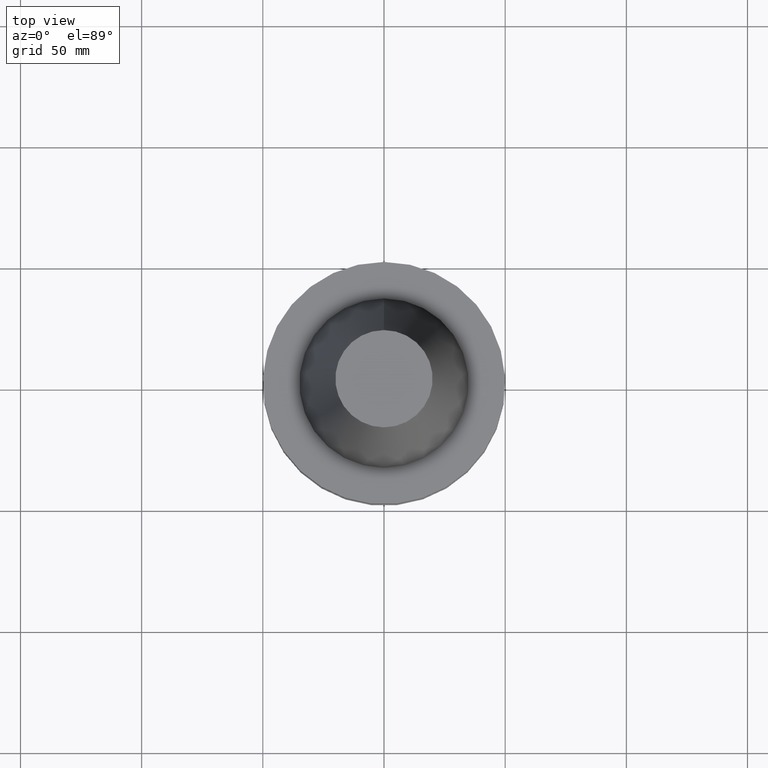
[diagram: clean part render]
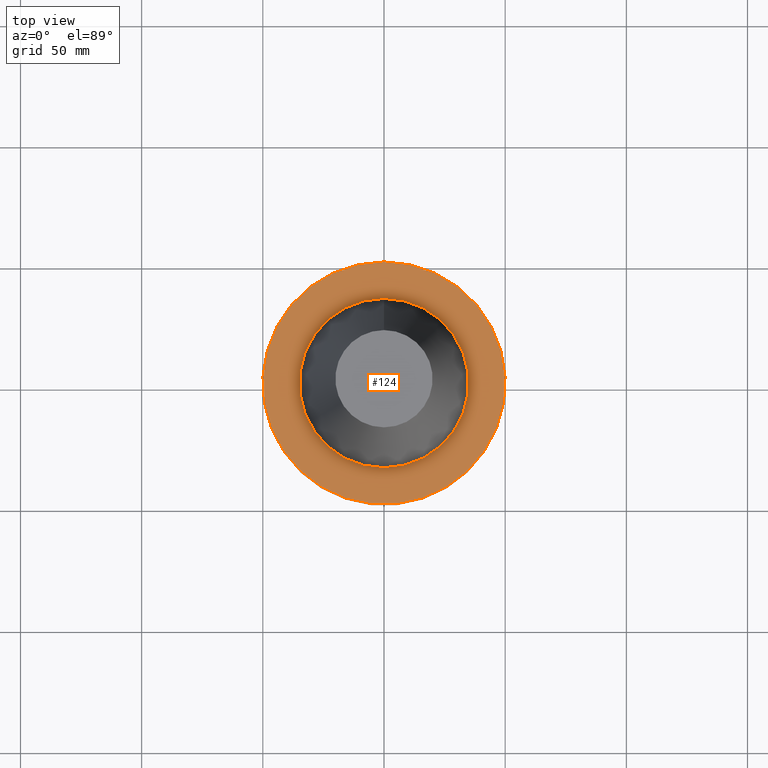
[diagram: same view with one face highlighted and labeled with its STEP entity id]
A machine part, top view. The second image highlights one B-rep face of the part: STEP entity #124.
In plain terms, the highlighted planar face has unit normal (-0, -0, 1).
Its self-contained STEP definition (entity closure, byte-faithful):
#81=EDGE_CURVE('Unnamed[1]',#211,#211,#212,.T.);
#99=EDGE_CURVE('Unnamed[1]',#240,#240,#241,.T.);
#124=ADVANCED_FACE('Unnamed[1]',(#277,#278),#279,.T.);
#211=VERTEX_POINT('',#389);
#212=CIRCLE('',#390,34.925);
#240=VERTEX_POINT('',#425);
#241=CIRCLE('',#426,50.0);
#277=FACE_BOUND('',#471,.T.);
#278=FACE_OUTER_BOUND('',#472,.T.);
#279=PLANE('',#473);
#389=CARTESIAN_POINT('',(9.18485099360511E-017,34.925,-1.5));
#390=AXIS2_PLACEMENT_3D('',#592,#593,#594);
#425=CARTESIAN_POINT('',(9.18485099360509E-017,50.0,-1.49999999999999));
#426=AXIS2_PLACEMENT_3D('',#625,#626,#627);
#471=EDGE_LOOP('',(#668));
#472=EDGE_LOOP('',(#669));
#473=AXIS2_PLACEMENT_3D('',#670,#671,#672);
#592=CARTESIAN_POINT('',(9.18485099360515E-017,1.58503636865388E-014,-1.5));
#593=DIRECTION('',(-6.12323399573677E-017,-2.72265846766536E-017,1.0));
#594=DIRECTION('',(-6.4943002195703E-033,1.0,2.72265846766536E-017));
#625=CARTESIAN_POINT('',(9.18485099360515E-017,1.58503636865388E-014,-1.5));
#626=DIRECTION('',(-6.12323399573677E-017,-2.72265846766671E-017,1.0));
#627=DIRECTION('',(-6.49430021956856E-033,1.0,2.72265846766671E-017));
#668=ORIENTED_EDGE('',*,*,#81,.F.);
#669=ORIENTED_EDGE('',*,*,#99,.T.);
#670=CARTESIAN_POINT('',(9.1848509936051E-017,42.4625,-1.49999999999999));
#671=DIRECTION('',(-6.12323399573677E-017,-1.22464679914735E-016,1.0));
#672=DIRECTION('',(-1.23259516440783E-032,1.0,1.22464679914735E-016));